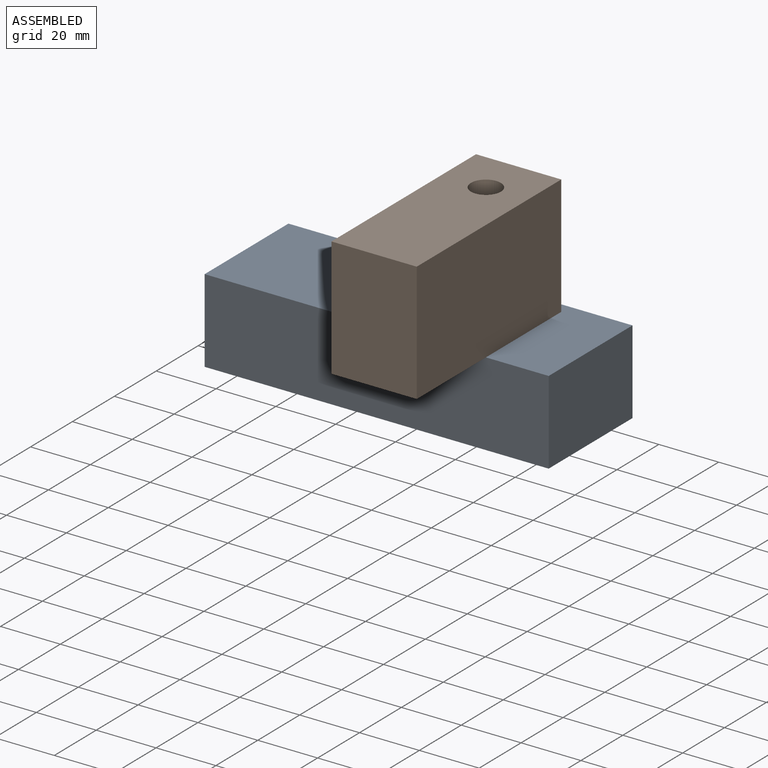
[diagram: assembled view]
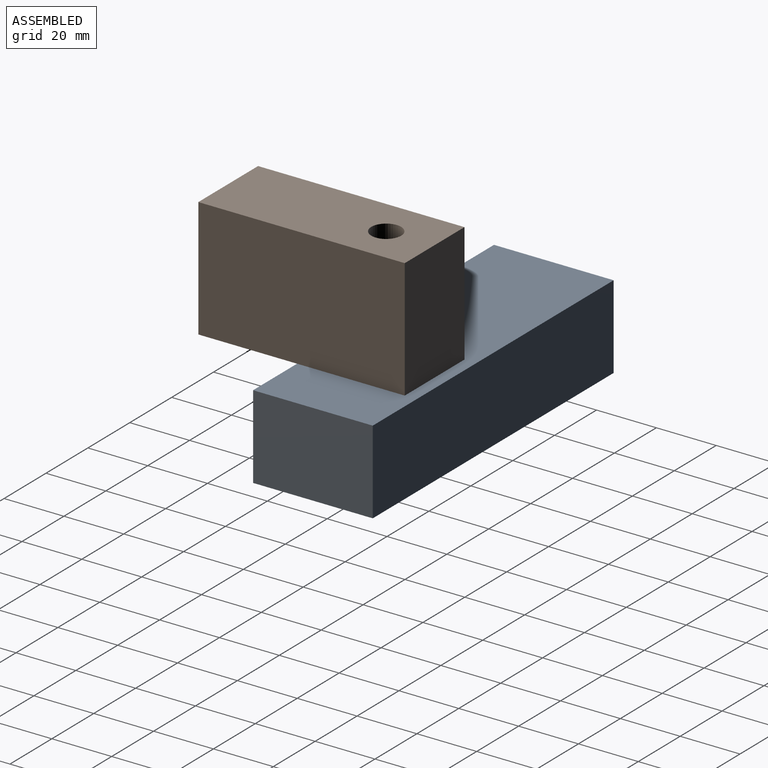
[diagram: assembled view, second angle]
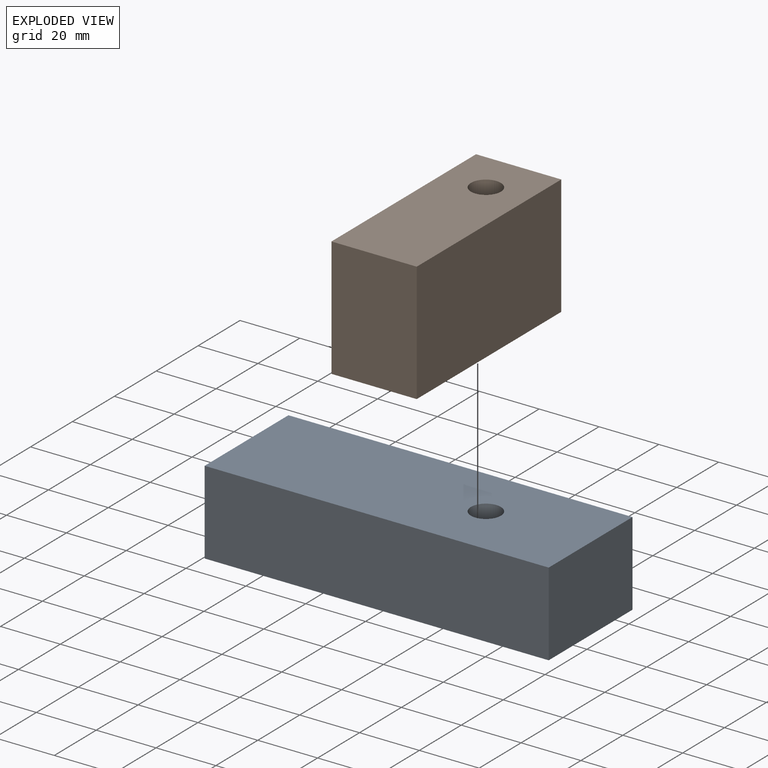
[diagram: exploded view]
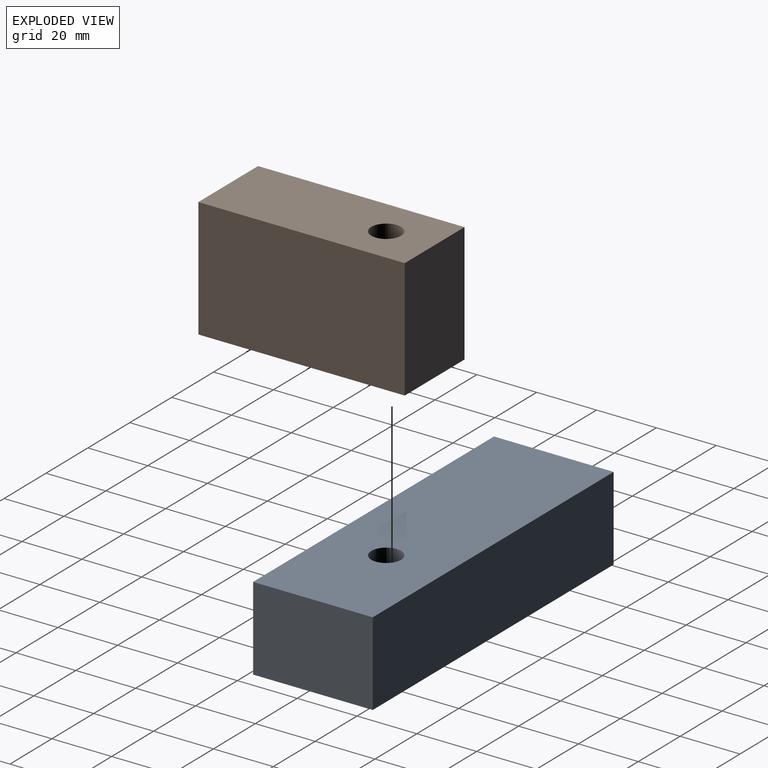
[diagram: exploded view, second angle]
ASSEMBLY  parts=2 mates=2
PART A: 7 faces, bbox 115x40x28 mm
  f0: plane 115x28mm, normal (0,1,0), area 3220mm2, adj f1,f3,f4,f5
  f1: plane 40x28mm, normal (-1,0,0), area 1120mm2, adj f0,f2,f4,f5
  f2: plane 115x28mm, normal (0,-1,0), area 3220mm2, adj f1,f3,f4,f5
  f3: plane 40x28mm, normal (1,0,0), area 1120mm2, adj f0,f2,f4,f5
  f4: plane 115x40mm, normal (0,0,1), area 4521.5mm2, adj f0,f1,f2,f3,f6
  f5: plane 115x40mm, normal (0,0,-1), area 4521.5mm2, adj f0,f1,f2,f3,f6
  f6: cylinder r=5mm len=28mm, axis (0,0,1), area 879.6mm2, adj f4,f5
PART B: 7 faces, bbox 69x28.5x40 mm
  f0: plane 40x28.5mm, normal (-1,0,0), area 1140mm2, adj f1,f3,f4,f5
  f1: plane 69x40mm, normal (0,-1,0), area 2760mm2, adj f0,f2,f4,f5
  f2: plane 40x28.5mm, normal (1,0,0), area 1140mm2, adj f1,f3,f4,f5
  f3: plane 69x40mm, normal (0,1,0), area 2760mm2, adj f0,f2,f4,f5
  f4: plane 69x28.5mm, normal (0,0,1), area 1888mm2, adj f0,f1,f2,f3,f6
  f5: plane 69x28.5mm, normal (0,0,-1), area 1888mm2, adj f0,f1,f2,f3,f6
  f6: cylinder r=5mm len=40mm, axis (0,0,-1), area 1256.6mm2, adj f4,f5
PLACE A rot(axis=(0,0,1),0deg) t=(-1.22,90.91,12)mm
PLACE B rot(axis=(0,0,1),90deg) t=(44.68,51.73,40)mm
MATE planar A.f4 <-> B.f5  axis (0,0,1) through (20.46,84.11,40)mm
MATE cylindrical B.f6 <-> A.f6  axis (0,0,-1) through (43.35,84.11,80)mm
